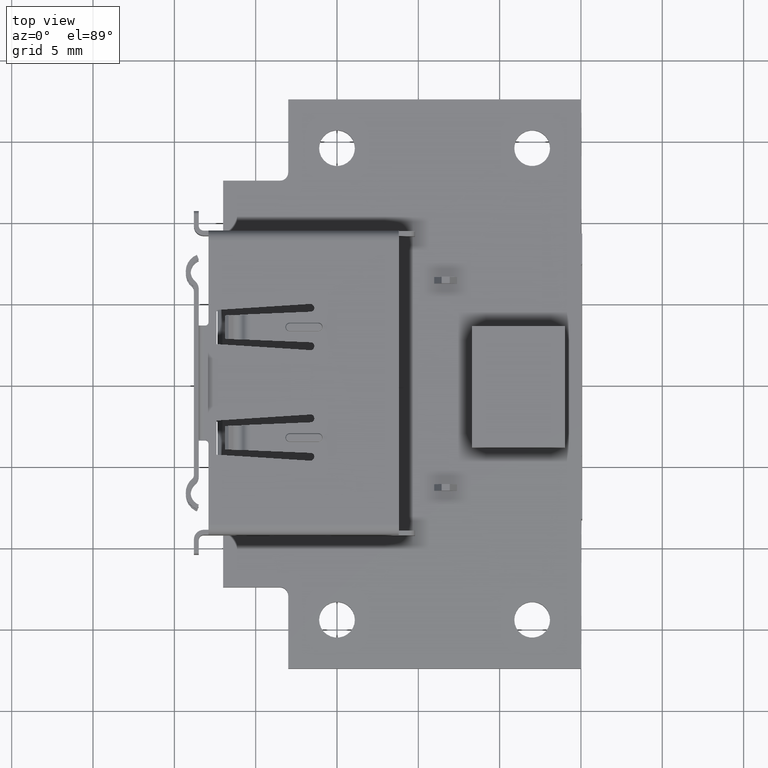
[diagram: clean part render]
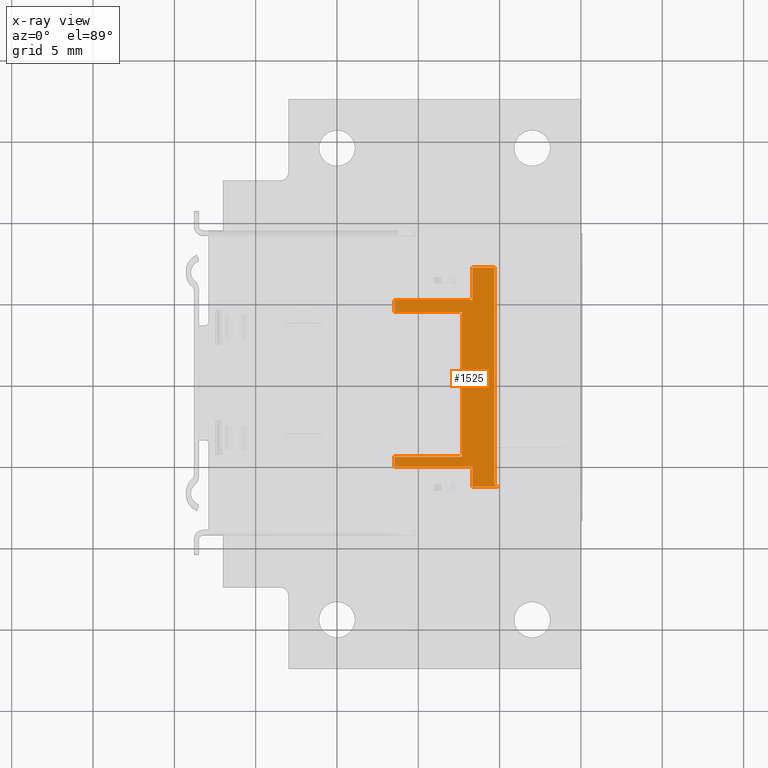
[diagram: x-ray — body ghosted, one internal face saturated and labeled with its STEP entity id]
A machine part, top view, then the same camera in x-ray: the body is ghosted and one INTERNAL B-rep face — a face not visible from any outside direction — is saturated and labeled: STEP entity #1525.
In plain terms, the highlighted planar face has unit normal (0, 0, 1).
Its self-contained STEP definition (entity closure, byte-faithful):
#1525=ADVANCED_FACE('',(#2867),#13401,.T.);
#2867=FACE_OUTER_BOUND('',#4355,.F.);
#4355=EDGE_LOOP('',(#11668,#11669,#11670,#11671,#11672,#11673,#11674,#11675,
#11676,#11677,#11678,#11679,#11680));
#11668=ORIENTED_EDGE('',*,*,#16656,.F.);
#11669=ORIENTED_EDGE('',*,*,#16655,.T.);
#11670=ORIENTED_EDGE('',*,*,#16653,.T.);
#11671=ORIENTED_EDGE('',*,*,#17031,.T.);
#11672=ORIENTED_EDGE('',*,*,#17032,.F.);
#11673=ORIENTED_EDGE('',*,*,#16532,.T.);
#11674=ORIENTED_EDGE('',*,*,#17033,.F.);
#11675=ORIENTED_EDGE('',*,*,#16956,.F.);
#11676=ORIENTED_EDGE('',*,*,#17034,.F.);
#11677=ORIENTED_EDGE('',*,*,#16520,.T.);
#11678=ORIENTED_EDGE('',*,*,#17035,.T.);
#11679=ORIENTED_EDGE('',*,*,#17036,.T.);
#11680=ORIENTED_EDGE('',*,*,#17037,.F.);
#13401=PLANE('',#29179);
#13872=CIRCLE('',#27869,0.25);
#16520=EDGE_CURVE('',#25801,#25802,#20104,.T.);
#16532=EDGE_CURVE('',#25791,#25792,#20116,.T.);
#16653=EDGE_CURVE('',#25707,#25706,#20236,.T.);
#16655=EDGE_CURVE('',#25705,#25707,#13872,.T.);
#16656=EDGE_CURVE('',#25705,#25704,#20238,.T.);
#16956=EDGE_CURVE('',#25423,#25422,#20532,.T.);
#17031=EDGE_CURVE('',#25706,#25363,#20607,.T.);
#17032=EDGE_CURVE('',#25791,#25363,#20608,.T.);
#17033=EDGE_CURVE('',#25422,#25792,#20609,.T.);
#17034=EDGE_CURVE('',#25801,#25423,#20610,.T.);
#17035=EDGE_CURVE('',#25802,#25362,#20611,.T.);
#17036=EDGE_CURVE('',#25362,#25361,#20612,.T.);
#17037=EDGE_CURVE('',#25704,#25361,#20613,.T.);
#20104=LINE('',#41667,#23624);
#20116=LINE('',#41679,#23636);
#20236=LINE('',#41800,#23756);
#20238=LINE('',#41803,#23758);
#20532=LINE('',#42103,#24052);
#20607=LINE('',#42178,#24127);
#20608=LINE('',#42179,#24128);
#20609=LINE('',#42180,#24129);
#20610=LINE('',#42181,#24130);
#20611=LINE('',#42182,#24131);
#20612=LINE('',#42183,#24132);
#20613=LINE('',#42184,#24133);
#23624=VECTOR('',#32153,0.75);
#23636=VECTOR('',#32165,0.6);
#23756=VECTOR('',#32287,1.61);
#23758=VECTOR('',#32291,13.21);
#24052=VECTOR('',#32597,8.89);
#24127=VECTOR('',#32672,1.23);
#24128=VECTOR('',#32673,4.8);
#24129=VECTOR('',#32674,4.16);
#24130=VECTOR('',#32675,4.16);
#24131=VECTOR('',#32676,4.8);
#24132=VECTOR('',#32677,1.99);
#24133=VECTOR('',#32678,1.36);
#25361=VERTEX_POINT('',#36676);
#25362=VERTEX_POINT('',#36677);
#25363=VERTEX_POINT('',#36678);
#25422=VERTEX_POINT('',#36737);
#25423=VERTEX_POINT('',#36738);
#25704=VERTEX_POINT('',#37019);
#25705=VERTEX_POINT('',#37020);
#25706=VERTEX_POINT('',#37021);
#25707=VERTEX_POINT('',#37022);
#25791=VERTEX_POINT('',#37106);
#25792=VERTEX_POINT('',#37107);
#25801=VERTEX_POINT('',#37116);
#25802=VERTEX_POINT('',#37117);
#27869=AXIS2_PLACEMENT_3D('',#41802,#32289,#32290);
#29179=AXIS2_PLACEMENT_3D('',#44585,#36094,#36095);
#32153=DIRECTION('',(0.,1.,0.));
#32165=DIRECTION('',(0.,1.,0.));
#32287=DIRECTION('',(-1.,0.,0.));
#32289=DIRECTION('',(0.,0.,1.));
#32290=DIRECTION('',(-1.,0.,0.));
#32291=DIRECTION('',(0.,1.,0.));
#32597=DIRECTION('',(0.,-1.,0.));
#32672=DIRECTION('',(0.,1.,0.));
#32673=DIRECTION('',(1.,0.,0.));
#32674=DIRECTION('',(-1.,0.,0.));
#32675=DIRECTION('',(1.,0.,0.));
#32676=DIRECTION('',(1.,0.,0.));
#32677=DIRECTION('',(0.,1.,0.));
#32678=DIRECTION('',(-1.,0.,0.));
#36094=DIRECTION('',(0.,0.,1.));
#36095=DIRECTION('',(0.,1.,0.));
#36676=CARTESIAN_POINT('',(-66.6800000000126,7.1800000000003,5.30000023211529));
#36677=CARTESIAN_POINT('',(-66.6800000000126,5.1900000000003,5.30000023211529));
#36678=CARTESIAN_POINT('',(-66.6800000000126,-5.0499999999997,5.30000023211529));
#36737=CARTESIAN_POINT('',(-67.3200000000126,-4.4499999999997,5.30000023211529));
#36738=CARTESIAN_POINT('',(-67.3200000000126,4.4400000000003,5.30000023211529));
#37019=CARTESIAN_POINT('',(-65.3200000000126,7.1800000000003,5.30000023211529));
#37020=CARTESIAN_POINT('',(-65.3200000000126,-6.0299999999997,5.30000023211529));
#37021=CARTESIAN_POINT('',(-66.6800000000126,-6.2799999999997,5.30000023211529));
#37022=CARTESIAN_POINT('',(-65.0700000000126,-6.2799999999997,5.30000023211529));
#37106=CARTESIAN_POINT('',(-71.4800000000126,-5.0499999999997,5.30000023211529));
#37107=CARTESIAN_POINT('',(-71.4800000000126,-4.4499999999997,5.30000023211529));
#37116=CARTESIAN_POINT('',(-71.4800000000126,4.4400000000003,5.30000023211529));
#37117=CARTESIAN_POINT('',(-71.4800000000126,5.1900000000003,5.30000023211529));
#41667=CARTESIAN_POINT('',(-71.4800000000126,4.4400000000003,5.30000023211529));
#41679=CARTESIAN_POINT('',(-71.4800000000126,-5.0499999999997,5.30000023211529));
#41800=CARTESIAN_POINT('',(-65.0700000000126,-6.2799999999997,5.30000023211529));
#41802=CARTESIAN_POINT('',(-65.0700000000126,-6.0299999999997,5.30000023211529));
#41803=CARTESIAN_POINT('',(-65.3200000000126,-6.0299999999997,5.30000023211529));
#42103=CARTESIAN_POINT('',(-67.3200000000126,4.4400000000003,5.30000023211529));
#42178=CARTESIAN_POINT('',(-66.6800000000126,-6.2799999999997,5.30000023211529));
#42179=CARTESIAN_POINT('',(-71.4800000000126,-5.0499999999997,5.30000023211529));
#42180=CARTESIAN_POINT('',(-67.3200000000126,-4.4499999999997,5.30000023211529));
#42181=CARTESIAN_POINT('',(-71.4800000000126,4.4400000000003,5.30000023211529));
#42182=CARTESIAN_POINT('',(-71.4800000000126,5.1900000000003,5.30000023211529));
#42183=CARTESIAN_POINT('',(-66.6800000000126,5.1900000000003,5.30000023211529));
#42184=CARTESIAN_POINT('',(-65.3200000000126,7.1800000000003,5.30000023211529));
#44585=CARTESIAN_POINT('',(-64.3970000000126,-6.9529999999997,5.30000023211529));